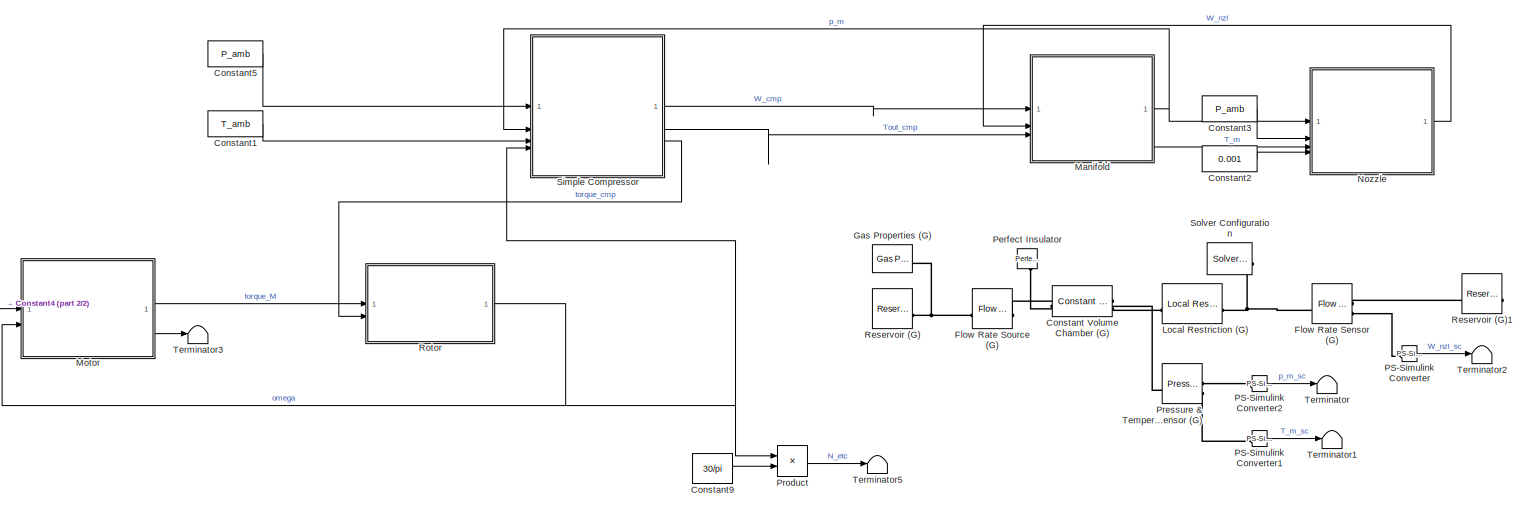
[diagram: root canvas - part 1/2, most of the canvas]
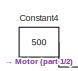
[diagram: root canvas - part 2/2, middle left region]
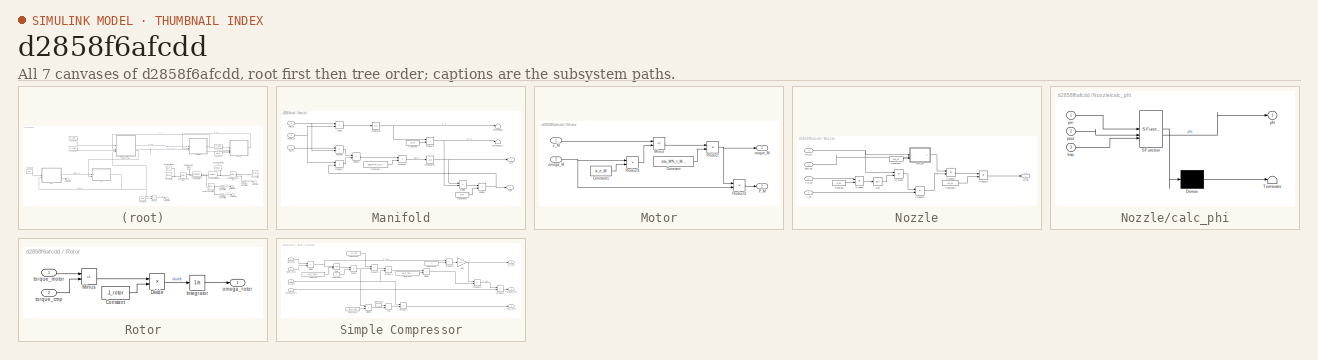
[diagram: thumbnail index - all 7 canvases of the model, root first then tree order]
MODEL slx_d2858f6afcdd
KIND model
CONFIG AbsTol = auto
CONFIG EnableMultiTasking = off
CONFIG FixedStep = 0.01
CONFIG MaxStep = auto
CONFIG MinStep = auto
CONFIG RelTol = 1e-3
CONFIG SampleTimeConstraint = Unconstrained
CONFIG SolverName = VariableStepAuto
CONFIG StartTime = 0.0
CONFIG StopTime = 1000
BLOCK [Reference] Constant Volume Chamber (G)  REF=fl_lib/Gas/Elements/Constant Volume
Chamber (G)
  NameLocation = top
  SourceBlock = fl_lib/Gas/Elements/Constant Volume\nChamber (G)
  SourceType = Constant Volume\nChamber (G)
BLOCK [Constant] Constant1
  Value = T_amb
BLOCK [Constant] Constant2
  Value = 0.001
BLOCK [Constant] Constant3
  Value = P_amb
BLOCK [Constant] Constant4
  Value = 500
BLOCK [Constant] Constant5
  Value = P_amb
BLOCK [Constant] Constant9
  Value = 30/pi
BLOCK [Reference] Flow Rate Sensor (G)  REF=fl_lib/Gas/Sensors/Flow Rate Sensor (G)
  SourceBlock = fl_lib/Gas/Sensors/Flow Rate Sensor (G)
  SourceType = Flow Rate Sensor (G)
BLOCK [Reference] Flow Rate Source (G)  REF=fl_lib/Gas/Sources/Flow Rate Source (G)
  SourceBlock = fl_lib/Gas/Sources/Flow Rate Source (G)
  SourceType = Flow Rate Source (G)
BLOCK [Reference] Gas Properties (G)  REF=fl_lib/Gas/Utilities/Gas Properties (G)
  SourceBlock = fl_lib/Gas/Utilities/Gas Properties (G)
  SourceType = Gas Properties (G)
BLOCK [Reference] Local Restriction (G)  REF=fl_lib/Gas/Elements/Local Restriction
(G)
  SourceBlock = fl_lib/Gas/Elements/Local Restriction\n(G)
  SourceType = Local Restriction\n(G)
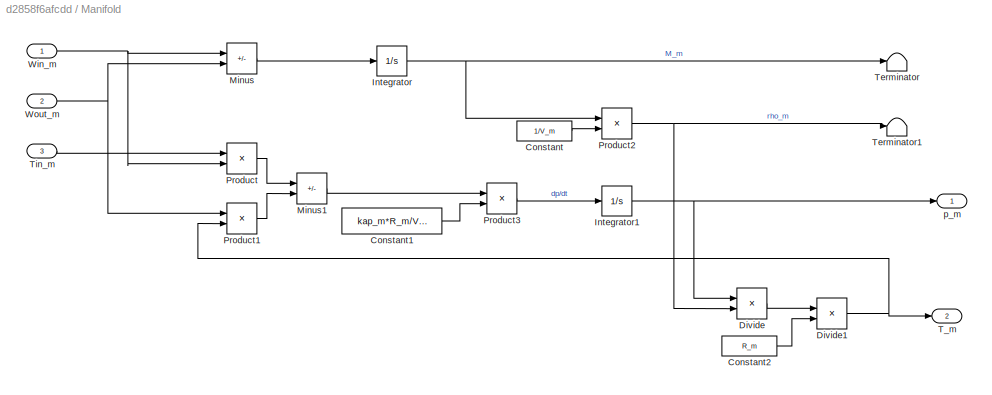
BLOCK [SubSystem] Manifold
BLOCK [Constant] Manifold/Constant
  Value = 1/V_m
BLOCK [Constant] Manifold/Constant1
  Value = kap_m*R_m/V_m
BLOCK [Constant] Manifold/Constant2
  Value = R_m
BLOCK [Product] Manifold/Divide
  Inputs = */
BLOCK [Product] Manifold/Divide1
  Inputs = */
BLOCK [Integrator] Manifold/Integrator
  InitialCondition = P_init*V_m/(R_m*T_init)
BLOCK [Integrator] Manifold/Integrator1
  InitialCondition = P_init
BLOCK [Sum] Manifold/Minus
  IconShape = rectangular
  Inputs = +-
BLOCK [Sum] Manifold/Minus1
  IconShape = rectangular
  Inputs = +-
BLOCK [Product] Manifold/Product
BLOCK [Product] Manifold/Product1
BLOCK [Product] Manifold/Product2
BLOCK [Product] Manifold/Product3
BLOCK [Outport] Manifold/T_m
  Port = 2
BLOCK [Terminator] Manifold/Terminator
BLOCK [Terminator] Manifold/Terminator1
BLOCK [Inport] Manifold/Tin_m
  Port = 3
BLOCK [Inport] Manifold/Win_m
BLOCK [Inport] Manifold/Wout_m
  Port = 2
BLOCK [Outport] Manifold/p_m
BLOCK [SubSystem] Motor
BLOCK [Constant] Motor/Constant
  Value = eta_M*k_t_M/R_M
BLOCK [Constant] Motor/Constant1
  Value = k_e_M
BLOCK [Sum] Motor/Minus
  IconShape = rectangular
  Inputs = +-
BLOCK [Outport] Motor/P_M
  Port = 2
BLOCK [Product] Motor/Product
BLOCK [Product] Motor/Product1
BLOCK [Product] Motor/Product2
BLOCK [Inport] Motor/omega_M
  Port = 2
BLOCK [Outport] Motor/torque_M
BLOCK [Inport] Motor/v_M
BLOCK [SubSystem] Nozzle
BLOCK [Inport] Nozzle/A_nzl
  Port = 4
BLOCK [Constant] Nozzle/Constant
  Value = R_nzl
BLOCK [Constant] Nozzle/Constant1
  Value = kap_nzl
BLOCK [Constant] Nozzle/Constant2
  Value = Cd_nzl
BLOCK [Product] Nozzle/Divide1
  Inputs = */
BLOCK [Product] Nozzle/Product
BLOCK [Product] Nozzle/Product1
BLOCK [Product] Nozzle/Product2
BLOCK [Product] Nozzle/Product4
BLOCK [Sqrt] Nozzle/Sqrt
BLOCK [Inport] Nozzle/Tin_nzl
  Port = 3
BLOCK [Outport] Nozzle/W_nzl
BLOCK [SubSystem] Nozzle/calc_phi
  ErrorFcn = Stateflow.Translate.translate
  PermitHierarchicalResolution = ExplicitOnly
  SFBlockType = MATLAB Function
  TreatAsAtomicUnit = on
BLOCK [Demux] Nozzle/calc_phi/ Demux 
  Outputs = 1
BLOCK [S-Function] Nozzle/calc_phi/ SFunction 
  EnableBusSupport = on
  FunctionName = sf_sfun
  PortCounts = [3 2]
  SFcnIsStateOwnerBlock = off
  SFunctionDeploymentMode = off
  Tag = Stateflow S-Function 2
BLOCK [Terminator] Nozzle/calc_phi/ Terminator 
BLOCK [Inport] Nozzle/calc_phi/kap
  Port = 3
BLOCK [Outport] Nozzle/calc_phi/phi
BLOCK [Inport] Nozzle/calc_phi/pin
BLOCK [Inport] Nozzle/calc_phi/pout
  Port = 2
BLOCK [Inport] Nozzle/pin_nzl
BLOCK [Inport] Nozzle/pout_nzl
  Port = 2
BLOCK [Reference] PS-Simulink Converter  REF=nesl_utility/PS-Simulink
Converter
  NameLocation = right
  SourceBlock = nesl_utility/PS-Simulink\nConverter
  SourceType = PS-Simulink\nConverter
BLOCK [Reference] PS-Simulink Converter1  REF=nesl_utility/PS-Simulink
Converter
  NameLocation = right
  SourceBlock = nesl_utility/PS-Simulink\nConverter
  SourceType = PS-Simulink\nConverter
BLOCK [Reference] PS-Simulink Converter2  REF=nesl_utility/PS-Simulink
Converter
  NameLocation = right
  SourceBlock = nesl_utility/PS-Simulink\nConverter
  SourceType = PS-Simulink\nConverter
BLOCK [Reference] Perfect Insulator  REF=fl_lib/Thermal/Thermal Elements/Perfect Insulator
  NameLocation = left
  SourceBlock = fl_lib/Thermal/Thermal Elements/Perfect Insulator
  SourceType = Perfect Insulator
BLOCK [Reference] Pressure & Temperature Sensor (G)  REF=fl_lib/Gas/Sensors/Pressure &
Temperature Sensor
(G)
  SourceBlock = fl_lib/Gas/Sensors/Pressure &\nTemperature Sensor\n(G)
  SourceType = Pressure &\nTemperature Sensor\n(G)
BLOCK [Product] Product
BLOCK [Reference] Reservoir (G)  REF=fl_lib/Gas/Elements/Reservoir (G)
  SourceBlock = fl_lib/Gas/Elements/Reservoir (G)
  SourceType = Reservoir (G)
BLOCK [Reference] Reservoir (G)1  REF=fl_lib/Gas/Elements/Reservoir (G)
  NameLocation = top
  SourceBlock = fl_lib/Gas/Elements/Reservoir (G)
  SourceType = Reservoir (G)
BLOCK [SubSystem] Rotor
BLOCK [Constant] Rotor/Constant
  Value = J_rotor
BLOCK [Product] Rotor/Divide
  Inputs = */
BLOCK [Integrator] Rotor/Integrator
BLOCK [Sum] Rotor/Minus
  IconShape = rectangular
  Inputs = +-
BLOCK [Outport] Rotor/omega_rotor
BLOCK [Inport] Rotor/torque_cmp
  Port = 2
BLOCK [Inport] Rotor/torque_motor
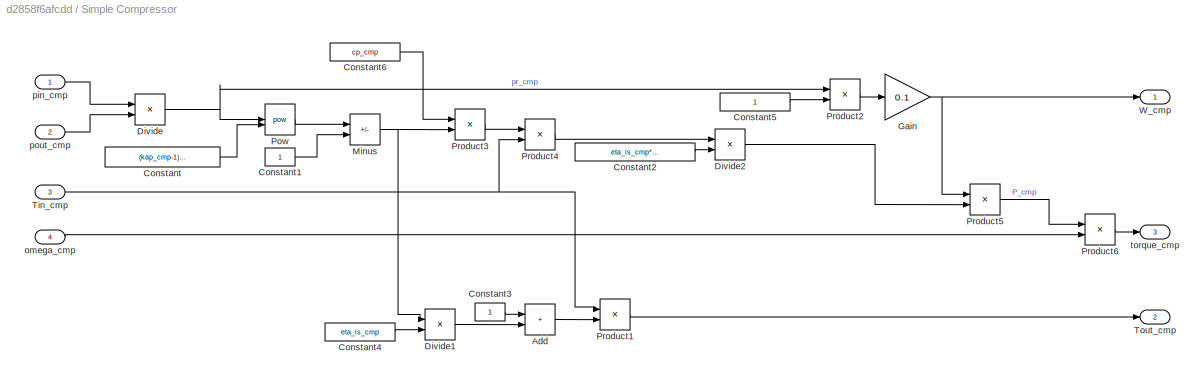
BLOCK [SubSystem] Simple Compressor
BLOCK [Sum] Simple Compressor/Add
  IconShape = rectangular
BLOCK [Constant] Simple Compressor/Constant
  Value = (kap_cmp-1)/kap_cmp
BLOCK [Constant] Simple Compressor/Constant1
BLOCK [Constant] Simple Compressor/Constant2
  Value = eta_is_cmp*eta_m_cmp
BLOCK [Constant] Simple Compressor/Constant3
BLOCK [Constant] Simple Compressor/Constant4
  Value = eta_is_cmp
BLOCK [Constant] Simple Compressor/Constant5
BLOCK [Constant] Simple Compressor/Constant6
  Value = cp_cmp
BLOCK [Product] Simple Compressor/Divide
  Inputs = /*
BLOCK [Product] Simple Compressor/Divide1
  Inputs = */
BLOCK [Product] Simple Compressor/Divide2
  Inputs = */
BLOCK [Gain] Simple Compressor/Gain
  Gain = 0.1
BLOCK [Sum] Simple Compressor/Minus
  IconShape = rectangular
  Inputs = +-
BLOCK [Math] Simple Compressor/Pow
  Operator = pow
  RndMeth = Zero
BLOCK [Product] Simple Compressor/Product1
BLOCK [Product] Simple Compressor/Product2
BLOCK [Product] Simple Compressor/Product3
BLOCK [Product] Simple Compressor/Product4
BLOCK [Product] Simple Compressor/Product5
BLOCK [Product] Simple Compressor/Product6
BLOCK [Inport] Simple Compressor/Tin_cmp
  Port = 3
BLOCK [Outport] Simple Compressor/Tout_cmp
  Port = 2
BLOCK [Outport] Simple Compressor/W_cmp
BLOCK [Inport] Simple Compressor/omega_cmp
  Port = 4
BLOCK [Inport] Simple Compressor/pin_cmp
BLOCK [Inport] Simple Compressor/pout_cmp
  Port = 2
BLOCK [Outport] Simple Compressor/torque_cmp
  Port = 3
BLOCK [Reference] Solver Configuration  REF=nesl_utility/Solver
Configuration
  SourceBlock = nesl_utility/Solver\nConfiguration
  SourceType = Solver\nConfiguration
BLOCK [Terminator] Terminator
BLOCK [Terminator] Terminator1
BLOCK [Terminator] Terminator2
BLOCK [Terminator] Terminator3
BLOCK [Terminator] Terminator5
LINE Constant1:1 -> Simple Compressor:3
LINE Constant2:1 -> Nozzle:4
LINE Constant3:1 -> Nozzle:2
LINE Constant4:1 -> Motor:1
LINE Constant5:1 -> Simple Compressor:1
LINE Constant9:1 -> Product:2
LINE Manifold/Constant1:1 -> Manifold/Product3:2
LINE Manifold/Constant2:1 -> Manifold/Divide1:2
LINE Manifold/Constant:1 -> Manifold/Product2:2
NET Manifold/Divide1:1 -> Manifold/Product1:2, Manifold/T_m:1
LINE Manifold/Divide:1 -> Manifold/Divide1:1
NET Manifold/Integrator1:1 -> Manifold/Divide:1, Manifold/p_m:1
NET Manifold/Integrator:1 -> Manifold/Product2:1, Manifold/Terminator:1
LINE Manifold/Minus1:1 -> Manifold/Product3:1
LINE Manifold/Minus:1 -> Manifold/Integrator:1
LINE Manifold/Product1:1 -> Manifold/Minus1:2
NET Manifold/Product2:1 -> Manifold/Divide:2, Manifold/Terminator1:1
LINE Manifold/Product3:1 -> Manifold/Integrator1:1
LINE Manifold/Product:1 -> Manifold/Minus1:1
LINE Manifold/Tin_m:1 -> Manifold/Product:1
NET Manifold/Win_m:1 -> Manifold/Minus:1, Manifold/Product:2
NET Manifold/Wout_m:1 -> Manifold/Minus:2, Manifold/Product1:1
NET Manifold:1 -> Nozzle:1, Simple Compressor:2
LINE Manifold:2 -> Nozzle:3
LINE Motor/Constant1:1 -> Motor/Product1:2
LINE Motor/Constant:1 -> Motor/Product:2
LINE Motor/Minus:1 -> Motor/Product:1
LINE Motor/Product1:1 -> Motor/Minus:2
LINE Motor/Product2:1 -> Motor/P_M:1
NET Motor/Product:1 -> Motor/Product2:1, Motor/torque_M:1
NET Motor/omega_M:1 -> Motor/Product1:1, Motor/Product2:2
LINE Motor/v_M:1 -> Motor/Minus:1
LINE Motor:1 -> Rotor:1
LINE Motor:2 -> Terminator3:1
LINE Nozzle/A_nzl:1 -> Nozzle/Product1:2
LINE Nozzle/Constant1:1 -> Nozzle/calc_phi:3
LINE Nozzle/Constant2:1 -> Nozzle/Product2:2
LINE Nozzle/Constant:1 -> Nozzle/Product:2
LINE Nozzle/Divide1:1 -> Nozzle/Product1:1
LINE Nozzle/Product1:1 -> Nozzle/Product4:2
LINE Nozzle/Product2:1 -> Nozzle/W_nzl:1
LINE Nozzle/Product4:1 -> Nozzle/Product2:1
LINE Nozzle/Product:1 -> Nozzle/Sqrt:1
LINE Nozzle/Sqrt:1 -> Nozzle/Divide1:2
LINE Nozzle/Tin_nzl:1 -> Nozzle/Product:1
LINE Nozzle/calc_phi:1 -> Nozzle/Product4:1
NET Nozzle/pin_nzl:1 -> Nozzle/Divide1:1, Nozzle/calc_phi:1
LINE Nozzle/pout_nzl:1 -> Nozzle/calc_phi:2
LINE Nozzle:1 -> Manifold:2
LINE PS-Simulink Converter1:1 -> Terminator1:1
LINE PS-Simulink Converter2:1 -> Terminator:1
LINE PS-Simulink Converter:1 -> Terminator2:1
LINE Product:1 -> Terminator5:1
LINE Rotor/Constant:1 -> Rotor/Divide:2
LINE Rotor/Divide:1 -> Rotor/Integrator:1
LINE Rotor/Integrator:1 -> Rotor/omega_rotor:1
LINE Rotor/Minus:1 -> Rotor/Divide:1
LINE Rotor/torque_cmp:1 -> Rotor/Minus:2
LINE Rotor/torque_motor:1 -> Rotor/Minus:1
NET Rotor:1 -> Motor:2, Product:1, Simple Compressor:4
LINE Simple Compressor/Add:1 -> Simple Compressor/Product1:2
LINE Simple Compressor/Constant1:1 -> Simple Compressor/Minus:2
LINE Simple Compressor/Constant2:1 -> Simple Compressor/Divide2:2
LINE Simple Compressor/Constant3:1 -> Simple Compressor/Add:1
LINE Simple Compressor/Constant4:1 -> Simple Compressor/Divide1:2
LINE Simple Compressor/Constant5:1 -> Simple Compressor/Product2:2
LINE Simple Compressor/Constant6:1 -> Simple Compressor/Product3:1
LINE Simple Compressor/Constant:1 -> Simple Compressor/Pow:2
LINE Simple Compressor/Divide1:1 -> Simple Compressor/Add:2
LINE Simple Compressor/Divide2:1 -> Simple Compressor/Product5:2
NET Simple Compressor/Divide:1 -> Simple Compressor/Pow:1, Simple Compressor/Product2:1
NET Simple Compressor/Gain:1 -> Simple Compressor/Product5:1, Simple Compressor/W_cmp:1
NET Simple Compressor/Minus:1 -> Simple Compressor/Divide1:1, Simple Compressor/Product3:2
LINE Simple Compressor/Pow:1 -> Simple Compressor/Minus:1
LINE Simple Compressor/Product1:1 -> Simple Compressor/Tout_cmp:1
LINE Simple Compressor/Product2:1 -> Simple Compressor/Gain:1
LINE Simple Compressor/Product3:1 -> Simple Compressor/Product4:1
LINE Simple Compressor/Product4:1 -> Simple Compressor/Divide2:1
LINE Simple Compressor/Product5:1 -> Simple Compressor/Product6:1
LINE Simple Compressor/Product6:1 -> Simple Compressor/torque_cmp:1
NET Simple Compressor/Tin_cmp:1 -> Simple Compressor/Product1:1, Simple Compressor/Product4:2
LINE Simple Compressor/omega_cmp:1 -> Simple Compressor/Product6:2
LINE Simple Compressor/pin_cmp:1 -> Simple Compressor/Divide:1
LINE Simple Compressor/pout_cmp:1 -> Simple Compressor/Divide:2
LINE Simple Compressor:1 -> Manifold:1
LINE Simple Compressor:2 -> Manifold:3
LINE Simple Compressor:3 -> Rotor:2
PLINE Constant Volume Chamber (G):LConn1 -- Flow Rate Source (G):RConn1
PLINE Constant Volume Chamber (G):LConn2 -- Perfect Insulator:LConn1
PNET net1: Constant Volume Chamber (G):RConn1 -- Local Restriction (G):LConn1 -- Pressure & Temperature Sensor (G):LConn1
PNET net2: Flow Rate Sensor (G):LConn1 -- Local Restriction (G):RConn1 -- Solver Configuration:RConn1
PLINE Flow Rate Sensor (G):RConn1 -- Reservoir (G)1:LConn1
PLINE Flow Rate Sensor (G):RConn2 -- PS-Simulink Converter:LConn1
PNET net3: Flow Rate Source (G):LConn1 -- Gas Properties (G):RConn1 -- Reservoir (G):LConn1
PLINE PS-Simulink Converter1:LConn1 -- Pressure & Temperature Sensor (G):RConn2
PLINE PS-Simulink Converter2:LConn1 -- Pressure & Temperature Sensor (G):RConn1
note: NET lines group one-source signal fan-out (src -> all destinations, sorted); 1:1 wires keep LINE; PNET lines group multi-terminal physical nets as a canonical sorted terminal list (undirected conserving connections); 2-terminal nets keep the pairwise PLINE form
CHART Nozzle/calc_phi states=1 transitions=1
  STATE_LABEL 'eML_blk_kernel()'
  STATE_LABEL 'SCRIPT:\nfunction phi = fcn(pin,pout,kap)\n    pr = pout/pin;\n    p_cr = (2/(kap+1))^(kap/(kap-1))*pin;\n    % Judge critical pressure\n    if pout < p_cr\n        tmp_phi = sqrt(kap*(2/(kap+1))^((kap+1)/(kap-1)));\n    else\n        tmp_phi = pr^(1/kap)*sqrt(2*kap/(kap-1)*(1-pr^((kap-1)/kap)));\n    end\n    phi = tmp_phi;\nend\n'
CHART  states=0 transitions=0
